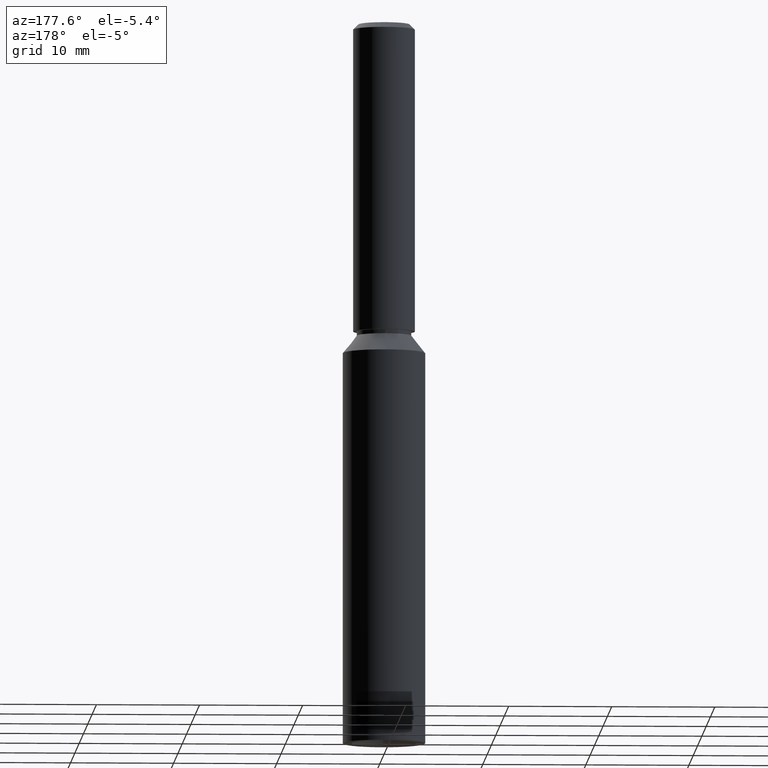
[diagram: clean part render]
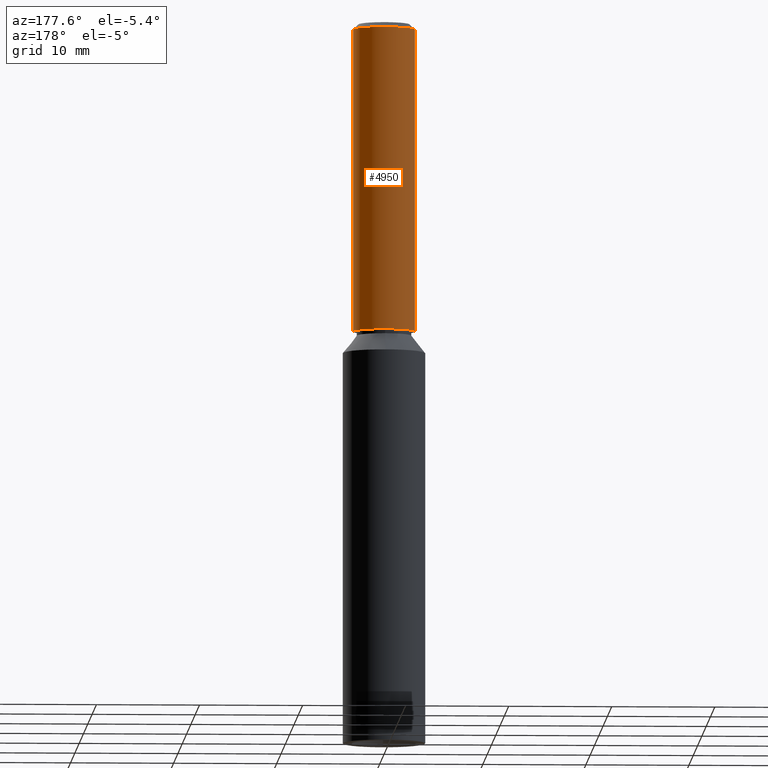
[diagram: same view with one face highlighted and labeled with its STEP entity id]
A machine part, auxiliary view. The second image highlights one B-rep face of the part: STEP entity #4950.
In plain terms, the highlighted cylindrical surface (edge-blend (fillet) strip) has radius 3 mm, axis along (-0, -0, -1).
Its self-contained STEP definition (entity closure, byte-faithful):
#325 = CARTESIAN_POINT ( 'NONE',  ( 0.0000000000000000000, 0.0000000000000000000, 69.49999999999998600 ) ) ;
#395 = VERTEX_POINT ( 'NONE', #4186 ) ;
#414 = CARTESIAN_POINT ( 'NONE',  ( -3.000000000000000400, 0.0000000000000000000, 69.49999999999998600 ) ) ;
#451 = VECTOR ( 'NONE', #8077, 1000.000000000000000 ) ;
#768 = DIRECTION ( 'NONE',  ( 0.0000000000000000000, 1.000000000000000000, 0.0000000000000000000 ) ) ;
#1489 = CARTESIAN_POINT ( 'NONE',  ( 3.000000000000000400, 3.673940397442060400E-016, 69.49999999999998600 ) ) ;
#1606 = AXIS2_PLACEMENT_3D ( 'NONE', #325, #4366, #12478 ) ;
#2174 = CARTESIAN_POINT ( 'NONE',  ( 0.0000000000000000000, 0.0000000000000000000, 70.00000000000000000 ) ) ;
#2943 = EDGE_CURVE ( 'NONE', #10431, #395, #7295, .T. ) ;
#3150 = CIRCLE ( 'NONE', #6863, 3.000000000000000400 ) ;
#3292 = LINE ( 'NONE', #11202, #451 ) ;
#3478 = VERTEX_POINT ( 'NONE', #414 ) ;
#4099 = VECTOR ( 'NONE', #4404, 1000.000000000000000 ) ;
#4185 = DIRECTION ( 'NONE',  ( -0.0000000000000000000, -0.0000000000000000000, -1.000000000000000000 ) ) ;
#4186 = CARTESIAN_POINT ( 'NONE',  ( 3.000000000000000400, 3.673940397442060400E-016, 40.10000000000000100 ) ) ;
#4292 = ORIENTED_EDGE ( 'NONE', *, *, #9538, .T. ) ;
#4366 = DIRECTION ( 'NONE',  ( 0.0000000000000000000, 0.0000000000000000000, -1.000000000000000000 ) ) ;
#4404 = DIRECTION ( 'NONE',  ( -0.0000000000000000000, -0.0000000000000000000, -1.000000000000000000 ) ) ;
#4685 = CARTESIAN_POINT ( 'NONE',  ( 0.0000000000000000000, 0.0000000000000000000, 40.10000000000000100 ) ) ;
#4909 = FACE_OUTER_BOUND ( 'NONE', #5131, .T. ) ;
#4950 = ADVANCED_FACE ( 'NONE', ( #4909 ), #8869, .T. ) ;
#5131 = EDGE_LOOP ( 'NONE', ( #4292, #9548, #7633, #5454 ) ) ;
#5415 = CARTESIAN_POINT ( 'NONE',  ( 3.000000000000000400, 3.673940397442060400E-016, 70.00000000000000000 ) ) ;
#5454 = ORIENTED_EDGE ( 'NONE', *, *, #6941, .F. ) ;
#5802 = EDGE_CURVE ( 'NONE', #11160, #395, #3150, .T. ) ;
#6168 = DIRECTION ( 'NONE',  ( -1.000000000000000000, 0.0000000000000000000, 0.0000000000000000000 ) ) ;
#6863 = AXIS2_PLACEMENT_3D ( 'NONE', #4685, #12882, #768 ) ;
#6941 = EDGE_CURVE ( 'NONE', #3478, #11160, #3292, .T. ) ;
#7295 = LINE ( 'NONE', #5415, #4099 ) ;
#7348 = AXIS2_PLACEMENT_3D ( 'NONE', #2174, #4185, #6168 ) ;
#7633 = ORIENTED_EDGE ( 'NONE', *, *, #5802, .F. ) ;
#8077 = DIRECTION ( 'NONE',  ( -0.0000000000000000000, -0.0000000000000000000, -1.000000000000000000 ) ) ;
#8260 = CIRCLE ( 'NONE', #1606, 3.000000000000000400 ) ;
#8869 = CYLINDRICAL_SURFACE ( 'NONE', #7348, 3.000000000000000400 ) ;
#9538 = EDGE_CURVE ( 'NONE', #3478, #10431, #8260, .T. ) ;
#9548 = ORIENTED_EDGE ( 'NONE', *, *, #2943, .T. ) ;
#10431 = VERTEX_POINT ( 'NONE', #1489 ) ;
#11160 = VERTEX_POINT ( 'NONE', #12924 ) ;
#11202 = CARTESIAN_POINT ( 'NONE',  ( -3.000000000000000400, 0.0000000000000000000, 70.00000000000000000 ) ) ;
#12478 = DIRECTION ( 'NONE',  ( 1.000000000000000000, 0.0000000000000000000, 0.0000000000000000000 ) ) ;
#12882 = DIRECTION ( 'NONE',  ( -0.0000000000000000000, 1.967742040464204400E-018, -1.000000000000000000 ) ) ;
#12924 = CARTESIAN_POINT ( 'NONE',  ( -3.000000000000000400, 0.0000000000000000000, 40.10000000000000100 ) ) ;